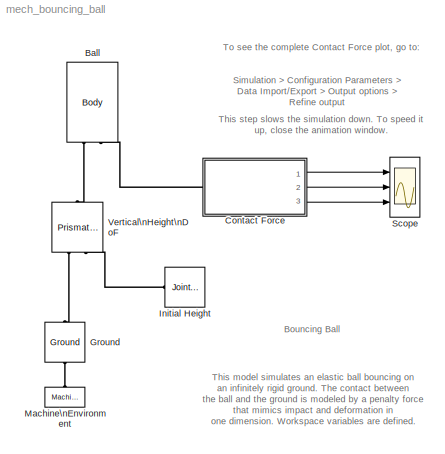
MODEL mech_bouncing_ball
KIND model
CONFIG PreLoadFcn = ball.radius = 0.2; ball.pengain = 1e5;\nball.mass = 1; ball.pendamp = 25;
BLOCK [Reference] Ball  REF=mblibv1/Bodies/Body
  CG = Left$CG$[0 0 ball.radius]$CS1$CS1$m$[0 0 0]$Euler X-Y-Z$deg$WORLD$true
  ClassName = Body
  Density = 1
  DensityUnits = kg/m^3
  DensityUse = false
  DialogClass = MechanicalBodyBlock
  Inertia = eye(3)*(2/5)*ball.mass*ball.radius^2
  InertiaUnits = kg*m^2
  LConnTagsString = CS1|CG
  LeftPortType = workingframe
  Mass = ball.mass
  MassUnits = kg
  PhysicalDomain = mechanical
  Ports = [0, 0, 0, 0, 0, 2]
  RightPortType = workingframe
  Shape = Cylinder
  ShapeDims = [1 1]
  ShapeUnits = m
  ShapeUse = false
  SourceBlock = mblibv1/Bodies/Body
  SourceType = msb
  SubClassName = Unknown
  WorkingFrames = Left$CS1$[0 0 0]$ADJOINING$ADJOINING$m$[0 0 0]$Euler X-Y-Z$deg$WORLD$true
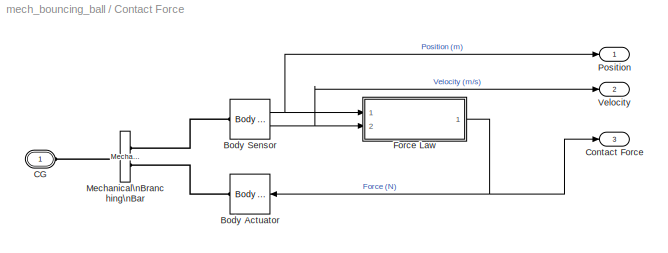
BLOCK [SubSystem] Contact Force
  MinAlgLoopOccurrences = off
  Ports = [0, 3, 0, 0, 0, 1]
  RTWSystemCode = Auto
  TreatAsAtomicUnit = off
BLOCK [Reference] Contact Force/Body Actuator  REF=mblibv1/Sensors & \nActuators/Body Actuator
  AccelerationUnits = m/s^2
  ActiveIO = on
  ActuationStyle = Force
  Angle = off
  AngleUnits = deg
  ArcAccelerationUnits = deg/s^2
  ArcVelocityUnits = deg/s
  ClassName = BodyActuatorForceTorque
  CoordPosition = on
  CoordPositionUnits = m
  DialogClass = MechanicalActuatorBlock
  Force = on
  ForceUnits = N
  Opaque = on
  PhysicalDomain = Mechanical
  PortType = blob
  Ports = [1, 0, 0, 0, 0, 0, 1]
  ReferenceFrame = Absolute (INERTIAL)
  ShowPortLabels = on
  SourceBlock = mblibv1/Sensors & \nActuators/Body Actuator
  SourceType = msb
  Torque = off
  TorqueUnits = N-m
  VelocityUnits = m/s
  Width = 3
BLOCK [Reference] Contact Force/Body Sensor  REF=mblibv1/Sensors & \nActuators/Body Sensor
  Acceleration = off
  AccelerationUnits = m/s^2
  ActiveIO = on
  Angle = on
  AngleUnits = deg
  ArcAcceleration = off
  ArcAccelerationUnits = deg/s^2
  ArcVelocity = off
  ArcVelocityUnits = deg/s
  ClassName = BodySensor
  CoordPosition = on
  CoordPositionUnits = m
  DialogClass = MechanicalSensorBlock
  Muxed = off
  Opaque = on
  OutputVector = [ 3 3 ]
  PhysicalDomain = Mechanical
  PortType = blob
  Ports = [0, 2, 0, 0, 0, 1]
  Pose = off
  Quaternion = on
  QuaternionDDT = off
  QuaternionDT = off
  QuaternionUnits = off
  ReferenceFrame = Absolute (World)
  ShowPortLabels = on
  SourceBlock = mblibv1/Sensors & \nActuators/Body Sensor
  SourceType = msb
  Velocity = on
  VelocityUnits = m/s
  Width = 6
BLOCK [PMIOPort] Contact Force/CG
  Port = 1
  Side = Left
  Tag = PMCPort
BLOCK [Outport] Contact Force/Contact Force
  BusOutputAsStruct = off
  IconDisplay = Port number
  Port = 3
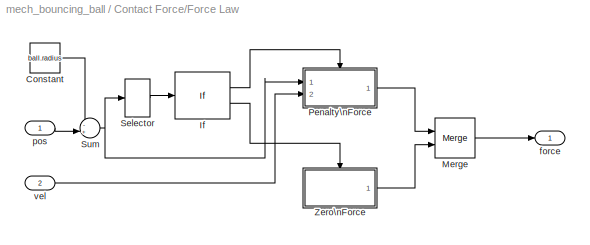
BLOCK [SubSystem] Contact Force/Force Law
  MinAlgLoopOccurrences = off
  Ports = [2, 1]
  RTWSystemCode = Auto
  TreatAsAtomicUnit = off
BLOCK [Constant] Contact Force/Force Law/Constant
  Value = ball.radius
BLOCK [If] Contact Force/Force Law/If
  IfExpression = u1 < 0
  Ports = [1, 2]
BLOCK [Merge] Contact Force/Force Law/Merge
  InitialOutput = 0
  InputPortOffsets = 0
  Ports = [2, 1]
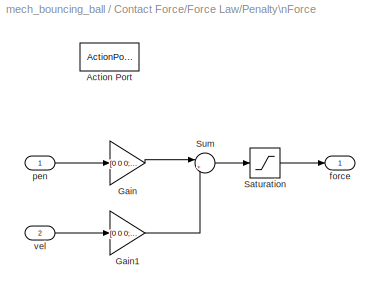
BLOCK [SubSystem] Contact Force/Force Law/Penalty\nForce
  MinAlgLoopOccurrences = off
  Ports = [2, 1, 0, 0, 0, 0, 0, 1]
  RTWSystemCode = Auto
  TreatAsAtomicUnit = on
BLOCK [ActionPort] Contact Force/Force Law/Penalty\nForce/Action Port
  ActionType = then
BLOCK [Gain] Contact Force/Force Law/Penalty\nForce/Gain
  Gain = [0 0 0;0 0 0;0 0 -ball.pengain]
  Multiplication = Matrix(K*u)
BLOCK [Gain] Contact Force/Force Law/Penalty\nForce/Gain1
  Gain = [0 0 0;0 0 0;0 0 -ball.pendamp]
  Multiplication = Matrix(K*u)
BLOCK [Saturate] Contact Force/Force Law/Penalty\nForce/Saturation
  LowerLimit = 0
  UpperLimit = inf
BLOCK [Sum] Contact Force/Force Law/Penalty\nForce/Sum
  IconShape = round
  InputSameDT = off
  Inputs = |++
  OutDataTypeMode = Inherit via internal rule
  Ports = [2, 1]
BLOCK [Outport] Contact Force/Force Law/Penalty\nForce/force
  BusOutputAsStruct = off
  IconDisplay = Port number
  InitialOutput = 0
BLOCK [Inport] Contact Force/Force Law/Penalty\nForce/pen
  IconDisplay = Port number
  LatchInput = off
  Port = 1
BLOCK [Inport] Contact Force/Force Law/Penalty\nForce/vel
  IconDisplay = Port number
  LatchInput = off
  Port = 2
BLOCK [Selector] Contact Force/Force Law/Selector
  Elements = [3]
  InputPortWidth = 3
  Ports = [1, 1]
BLOCK [Sum] Contact Force/Force Law/Sum
  IconShape = round
  InputSameDT = off
  Inputs = -+|
  OutDataTypeMode = Inherit via internal rule
  Ports = [2, 1]
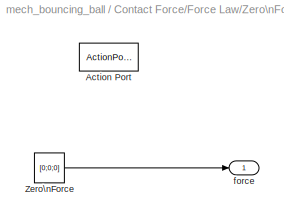
BLOCK [SubSystem] Contact Force/Force Law/Zero\nForce
  MinAlgLoopOccurrences = off
  Ports = [0, 1, 0, 0, 0, 0, 0, 1]
  RTWSystemCode = Auto
  TreatAsAtomicUnit = on
BLOCK [ActionPort] Contact Force/Force Law/Zero\nForce/Action Port
  ActionType = else
BLOCK [Constant] Contact Force/Force Law/Zero\nForce/Zero\nForce
  Value = [0;0;0]
BLOCK [Outport] Contact Force/Force Law/Zero\nForce/force
  BusOutputAsStruct = off
  IconDisplay = Port number
  InitialOutput = 0
BLOCK [Outport] Contact Force/Force Law/force
  BusOutputAsStruct = off
  IconDisplay = Port number
BLOCK [Inport] Contact Force/Force Law/pos
  IconDisplay = Port number
  LatchInput = off
  Port = 1
BLOCK [Inport] Contact Force/Force Law/vel
  IconDisplay = Port number
  LatchInput = off
  Port = 2
BLOCK [Reference] Contact Force/Mechanical\nBranching\nBar  REF=mblibv1/Utilities/Mechanical\nBranching\nBar
  ClassName = BranchingBar
  DialogClass = MechanicalBranchingBarBlock
  LConnTagsString = _newl0
  LeftPortType = blob
  NumSAPorts = 2
  PhysicalDomain = mechanical
  Ports = [0, 0, 0, 0, 0, 1, 2]
  RConnTagsString = SA0|SA1
  RightPortType = blob
  SourceBlock = mblibv1/Utilities/Mechanical\nBranching\nBar
  SourceType = msb
  SubClassName = Unknown
BLOCK [Outport] Contact Force/Position
  BusOutputAsStruct = off
  IconDisplay = Port number
BLOCK [Outport] Contact Force/Velocity
  BusOutputAsStruct = off
  IconDisplay = Port number
  Port = 2
BLOCK [Reference] Ground  REF=mblibv1/Bodies/Ground
  ClassName = Ground
  CoordPosition = [0 0 0]
  CoordPositionUnits = m
  DialogClass = GroundBlock
  LeftPortType = env
  MachineId = [0 0]
  Opaque = on
  PhysicalDomain = Mechanical
  Ports = [0, 0, 0, 0, 0, 1, 1]
  RightPortType = workingframe
  ShowEnvPort = on
  ShowPortLabels = on
  SourceBlock = mblibv1/Bodies/Ground
  SourceType = msb
  StateVectorMgrId = -1
  UserData = DataTag0
  UserDataPersistent = on
BLOCK [Reference] Initial Height  REF=mblibv1/Sensors & \nActuators/Joint Initial Condition
  ClassName = InitialCondition
  DialogClass = InitialConditionBlock
  InitialConditions = P1$true$5$m$rad$0$m/s$rad/s#P2$false$0$m$rad$0$m/s$rad/s#P3$false$0$m$rad$0$m/s$rad/s#R1$false$0$m$rad$0$m/s$rad/s#R2$false$0$m$rad$0$m/s$rad/s#R3$false$0$m$rad$0$m/s$rad/s#S$false$0$m$rad$0$m/s$rad/s
  Opaque = on
  PhysicalDomain = Mechanical
  Ports = [0, 0, 0, 0, 0, 0, 1]
  ShowPortLabels = on
  SourceBlock = mblibv1/Sensors & \nActuators/Joint Initial Condition
  SourceType = msb
BLOCK [Reference] Machine\nEnvironment  REF=mblibv1/Bodies/Machine\nEnvironment
  AnalysisType = Forward dynamics
  AngularAssemblyTolerance = 1e-3
  AngularAssemblyToleranceUnits = rad
  ClassName = Environment
  ConstraintAbsTolerance = 1e-4
  ConstraintRelTolerance = 1e-4
  ConstraintSolverType = Stabilizing
  DialogController = MECH.DialogSource
  DialogTemplateClass = MECH.MachineEnvironment
  Dimensionality = 3D Only
  Gravity = [0 0 -9.81]
  GravityAsSignal = off
  GravityUnits = m/s^2
  LinearAssemblyTolerance = 1e-3
  LinearAssemblyToleranceUnits = m
  Opaque = on
  PerturbationSize = 1e-5
  PhysicalDomain = Mechanical
  PortType = env
  Ports = [0, 0, 0, 0, 0, 0, 1]
  ShowPortLabels = on
  SourceBlock = mblibv1/Bodies/Machine\nEnvironment
  SourceType = Mechanical
  StatePerturbationType = Fixed
  SyncWhenCopied = off
  Tag = Factory ground
  UseRobustSingularityHandling = off
  VisualizeMachine = on
BLOCK [Scope] Scope
  DataFormat = StructureWithTime
  MaxDataPoints = 50000
  NumInputPorts = 3
  Ports = [3]
  SaveToWorkspace = on
  TimeRange = 20
  YMax = 6~10~3000
  YMin = 0~-10~0
  ZoomMode = xonly
BLOCK [Reference] Vertical\nHeight\nDoF  REF=mblibv1/Joints/Prismatic
  ClassName = Joint
  CutJoint = off
  DialogClass = JointBlock
  LConnTagsString = __newl0|SA1
  LeftPortType = blob
  MarkAsCut = off
  NumSAPorts = 1
  PhysicalDomain = mechanical
  Ports = [0, 0, 0, 0, 0, 2, 1]
  PrimitiveProps = P1$WORLD$[0 0 1]$prismatic
  Primitives = prismatic
  RConnTagsString = __newr0
  RightPortType = blob
  SourceBlock = mblibv1/Joints/Prismatic
  SourceType = msb
  SubClassName = Unknown
ANNOTATION (root): Bouncing Ball
ANNOTATION (root): Simulation > Configuration Parameters >\nData Import/Export > Output options >\nRefine output
ANNOTATION (root): This model simulates an elastic ball bouncing on\nan infinitely rigid ground. The contact between\nthe ball and the ground is modeled by a penalty force\nthat mimics impact and deformation in\none dimension. Workspace variables are defined.
ANNOTATION (root): This step slows the simulation down. To speed it\nup, close the animation window.
ANNOTATION (root): To see the complete Contact Force plot, go to:
NET Contact Force/Body Sensor:1 -> Contact Force/Force Law:1, Contact Force/Position:1
NET Contact Force/Body Sensor:2 -> Contact Force/Force Law:2, Contact Force/Velocity:1
LINE Contact Force/Force Law/Constant:1 -> Contact Force/Force Law/Sum:1
LINE Contact Force/Force Law/If:1 -> Contact Force/Force Law/Penalty\nForce:ifaction
LINE Contact Force/Force Law/If:2 -> Contact Force/Force Law/Zero\nForce:ifaction
LINE Contact Force/Force Law/Merge:1 -> Contact Force/Force Law/force:1
LINE Contact Force/Force Law/Penalty\nForce/Gain1:1 -> Contact Force/Force Law/Penalty\nForce/Sum:2
LINE Contact Force/Force Law/Penalty\nForce/Gain:1 -> Contact Force/Force Law/Penalty\nForce/Sum:1
LINE Contact Force/Force Law/Penalty\nForce/Saturation:1 -> Contact Force/Force Law/Penalty\nForce/force:1
LINE Contact Force/Force Law/Penalty\nForce/Sum:1 -> Contact Force/Force Law/Penalty\nForce/Saturation:1
LINE Contact Force/Force Law/Penalty\nForce/pen:1 -> Contact Force/Force Law/Penalty\nForce/Gain:1
LINE Contact Force/Force Law/Penalty\nForce/vel:1 -> Contact Force/Force Law/Penalty\nForce/Gain1:1
LINE Contact Force/Force Law/Penalty\nForce:1 -> Contact Force/Force Law/Merge:1
LINE Contact Force/Force Law/Selector:1 -> Contact Force/Force Law/If:1
NET Contact Force/Force Law/Sum:1 -> Contact Force/Force Law/Penalty\nForce:1, Contact Force/Force Law/Selector:1
LINE Contact Force/Force Law/Zero\nForce/Zero\nForce:1 -> Contact Force/Force Law/Zero\nForce/force:1
LINE Contact Force/Force Law/Zero\nForce:1 -> Contact Force/Force Law/Merge:2
LINE Contact Force/Force Law/pos:1 -> Contact Force/Force Law/Sum:2
LINE Contact Force/Force Law/vel:1 -> Contact Force/Force Law/Penalty\nForce:2
NET Contact Force/Force Law:1 -> Contact Force/Body Actuator:1, Contact Force/Contact Force:1
LINE Contact Force:1 -> Scope:1
LINE Contact Force:2 -> Scope:2
LINE Contact Force:3 -> Scope:3
PLINE Ball:LConn1 -- Vertical\nHeight\nDoF:RConn1
PLINE Ball:LConn2 -- Contact Force:LConn1
PLINE Contact Force/Body Actuator:RConn1 -- Contact Force/Mechanical\nBranching\nBar:RConn2
PLINE Contact Force/Body Sensor:LConn1 -- Contact Force/Mechanical\nBranching\nBar:RConn1
PLINE Contact Force/CG:RConn1 -- Contact Force/Mechanical\nBranching\nBar:LConn1
PLINE Ground:LConn1 -- Machine\nEnvironment:RConn1
PLINE Ground:RConn1 -- Vertical\nHeight\nDoF:LConn1
PLINE Initial Height:RConn1 -- Vertical\nHeight\nDoF:LConn2
note: NET lines group one-source signal fan-out (src -> all destinations, sorted); 1:1 wires keep LINE
